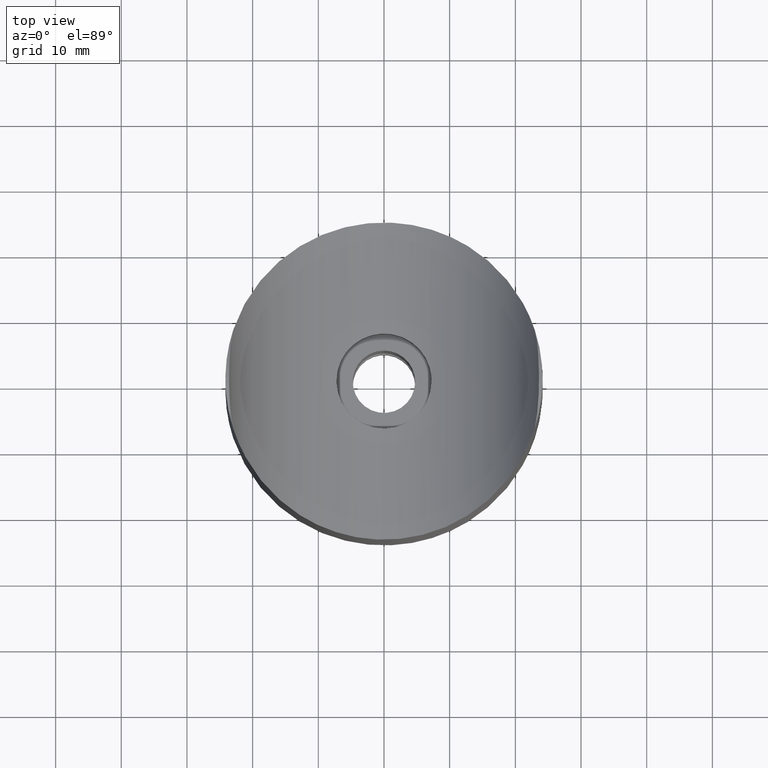
[diagram: clean part render]
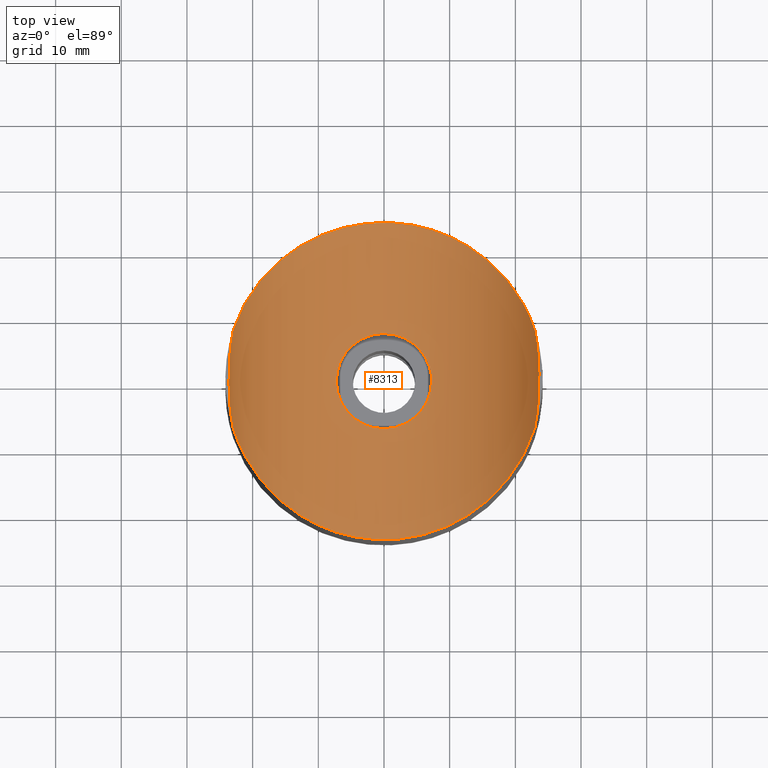
[diagram: same view with one face highlighted and labeled with its STEP entity id]
A machine part, top view. The second image highlights one B-rep face of the part: STEP entity #8313.
In plain terms, the highlighted cylindrical surface (partial cylindrical patch) has radius 24.15 mm, axis along (0, 1, 0).
Its self-contained STEP definition (entity closure, byte-faithful):
#99 = CARTESIAN_POINT ( 'NONE',  ( -5.463935351666969531, 4.788709261913876247, 25.62373870971207523 ) ) ;
#129 = CARTESIAN_POINT ( 'NONE',  ( 22.95588159927646643, 7.499999999999992895, 41.65000000000000568 ) ) ;
#141 = CARTESIAN_POINT ( 'NONE',  ( 23.49949931771601186, -3.305007554286282456, 43.58204950070745554 ) ) ;
#148 = CARTESIAN_POINT ( 'NONE',  ( -7.190937394407018068, -0.9539719690186864165, 26.09542276474033784 ) ) ;
#190 = CARTESIAN_POINT ( 'NONE',  ( -1.194082458193146845, 7.154916845269342573, 25.02841527240805419 ) ) ;
#220 = CARTESIAN_POINT ( 'NONE',  ( -23.17853233189731554, 6.387139284601362377, 42.36256465816466488 ) ) ;
#242 = CARTESIAN_POINT ( 'NONE',  ( -6.875825524705427405, -2.347176018906347306, 25.99873104965085702 ) ) ;
#273 = CARTESIAN_POINT ( 'NONE',  ( -23.34095896364553724, 5.203425376635841815, 42.94409360062369529 ) ) ;
#288 = CARTESIAN_POINT ( 'NONE',  ( -4.228520255933791994, -5.893855298342542071, 25.37224818271729632 ) ) ;
#334 = CARTESIAN_POINT ( 'NONE',  ( 5.750336783304167199, 4.421788825645395882, 25.69408307455902474 ) ) ;
#419 = CARTESIAN_POINT ( 'NONE',  ( 7.015820218399774433, 1.888619147174181112, 26.04133722469338963 ) ) ;
#474 = CARTESIAN_POINT ( 'NONE',  ( 7.249999999999999112, -8.131516293641283255E-17, 26.11394130932985291 ) ) ;
#524 = CARTESIAN_POINT ( 'NONE',  ( 23.57219652307004409, 1.662667037415999083, 43.89864619612770724 ) ) ;
#681 = B_SPLINE_CURVE_WITH_KNOTS ( 'NONE', 3,
 ( #7954, #6911, #220, #273, #10173, #10137, #10216, #7873, #1360, #5712, #2381, #3582, #12400, #11173, #10085, #3486, #8950, #7915, #9132, #11130, #11258, #13389 ),
 .UNSPECIFIED., .F., .F.,
 ( 4, 2, 2, 2, 2, 2, 2, 2, 2, 2, 4 ),
 ( 6.071532165918824830E-18, 0.001993106903680222364, 0.003986213807360438656, 0.004982767259200545501, 0.005979320711040651479, 0.007972427614720865169, 0.008968981066560969412, 0.009965534518401077124, 0.01195864142208128908, 0.01395174832576150104, 0.01594485522944170952 ),
 .UNSPECIFIED. ) ;
#917 = B_SPLINE_CURVE_WITH_KNOTS ( 'NONE', 3,
 ( #8172, #9246, #2577, #10048, #1570, #7114, #141, #3697, #8225, #9335, #11372, #3795, #2628, #2343, #524, #7836, #10331, #4809, #12527, #8112, #1619, #3842 ),
 .UNSPECIFIED., .F., .F.,
 ( 4, 2, 2, 2, 2, 2, 2, 2, 2, 2, 4 ),
 ( 1.044441840201302382E-17, 0.001993106903680225400, 0.003986213807360440391, 0.004982767259200544634, 0.005979320711040648009, 0.007972427614720858230, 0.008968981066560962473, 0.009965534518401066716, 0.01195864142208127520, 0.01395174832576148369, 0.01594485522944169217 ),
 .UNSPECIFIED. ) ;
#963 = CARTESIAN_POINT ( 'NONE',  ( 14.16052466468780224, -34.42068965517238865, 14.72931034482759927 ) ) ;
#1189 = CARTESIAN_POINT ( 'NONE',  ( -4.231050712837522099, 5.892028891758616105, 25.37270058855559185 ) ) ;
#1232 = CARTESIAN_POINT ( 'NONE',  ( -6.877376070853803647, 2.342668701104159812, 25.99919327012955250 ) ) ;
#1250 = VERTEX_POINT ( 'NONE', #13001 ) ;
#1285 = CARTESIAN_POINT ( 'NONE',  ( -0.4825929110061835114, 7.237878246713412622, 25.00364694169966029 ) ) ;
#1304 = ORIENTED_EDGE ( 'NONE', *, *, #8057, .F. ) ;
#1335 = CARTESIAN_POINT ( 'NONE',  ( -7.250203973369103494, 0.4717505720782100842, 26.11400550463317671 ) ) ;
#1360 = CARTESIAN_POINT ( 'NONE',  ( -23.54919858853800108, 2.327953500225907302, 43.79645623682837652 ) ) ;
#1372 = CARTESIAN_POINT ( 'NONE',  ( 1.655916322836513688, -7.062402749334219187, 25.05569510540831857 ) ) ;
#1558 = CARTESIAN_POINT ( 'NONE',  ( -14.16052466468779691, 34.42068965517240287, 14.72931034482758150 ) ) ;
#1570 = CARTESIAN_POINT ( 'NONE',  ( 23.40425869456801422, -4.588300385915843549, 43.19129710098017227 ) ) ;
#1619 = CARTESIAN_POINT ( 'NONE',  ( 23.07943559808702361, 6.955780803518929467, 42.02817212904162147 ) ) ;
#1627 = EDGE_CURVE ( 'NONE', #14016, #9019, #917, .T. ) ;
#2040 = AXIS2_PLACEMENT_3D ( 'NONE', #11614, #9482, #2876 ) ;
#2247 = CARTESIAN_POINT ( 'NONE',  ( 7.005132268049746536, -1.883515786305133943, 26.03818712466236107 ) ) ;
#2295 = CARTESIAN_POINT ( 'NONE',  ( 5.450528033875953859, -4.786478692552384118, 25.62260825477086712 ) ) ;
#2343 = CARTESIAN_POINT ( 'NONE',  ( 23.58059663413400386, 1.331354551583066259, 43.93668628495057504 ) ) ;
#2348 = CARTESIAN_POINT ( 'NONE',  ( -1.891178497224034638, 7.015027855281254610, 25.06966207377721290 ) ) ;
#2381 = CARTESIAN_POINT ( 'NONE',  ( -23.59438424472908125, 0.6794122471350207970, 43.99951144466636777 ) ) ;
#2393 = CARTESIAN_POINT ( 'NONE',  ( -4.962435920999240579, 5.290811488851250743, 25.51472985797496662 ) ) ;
#2430 = CARTESIAN_POINT ( 'NONE',  ( 0.9484403245173363972, 7.203466903221687367, 25.01409243754153167 ) ) ;
#2482 = CARTESIAN_POINT ( 'NONE',  ( 5.291107627380770673, 4.962046597767265865, 25.58613754225201831 ) ) ;
#2577 = CARTESIAN_POINT ( 'NONE',  ( 23.17853233189731910, -6.387139284601352607, 42.36256465816467198 ) ) ;
#2628 = CARTESIAN_POINT ( 'NONE',  ( 23.59177974707780123, 0.6632460867595817433, 43.98752909174069003 ) ) ;
#2876 = DIRECTION ( 'NONE',  ( 0.000000000000000000, 0.000000000000000000, 1.000000000000000000 ) ) ;
#3246 = CARTESIAN_POINT ( 'NONE',  ( 7.250000000000000000, 0.000000000000000000, 26.11394130932984936 ) ) ;
#3264 = CARTESIAN_POINT ( 'NONE',  ( 6.511077239207348377, -3.223923639002039820, 25.89350832831135918 ) ) ;
#3358 = CARTESIAN_POINT ( 'NONE',  ( -7.238159395298985110, -0.4782172060890971244, 26.11020484737162306 ) ) ;
#3411 = ORIENTED_EDGE ( 'NONE', *, *, #11090, .F. ) ;
#3412 = CARTESIAN_POINT ( 'NONE',  ( 1.649311365242461358, 7.063923530108977111, 25.05524869917393360 ) ) ;
#3454 = CARTESIAN_POINT ( 'NONE',  ( -0.9548036046264853915, -7.202553625920780078, 25.01436544652691651 ) ) ;
#3486 = CARTESIAN_POINT ( 'NONE',  ( -23.53819279198609138, -2.648538919427390503, 43.74753363082997026 ) ) ;
#3506 = CARTESIAN_POINT ( 'NONE',  ( -1.887006463236357678, -7.016240821506662506, 25.06930831911350310 ) ) ;
#3556 = CARTESIAN_POINT ( 'NONE',  ( -6.284815106235163817, -3.644957662798244957, 25.83054428248398082 ) ) ;
#3582 = CARTESIAN_POINT ( 'NONE',  ( -23.59454307295503384, -0.3254296317553804774, 44.00023910845316522 ) ) ;
#3596 = CARTESIAN_POINT ( 'NONE',  ( 6.874400171282861294, 2.351453121312660155, 25.99830351633713832 ) ) ;
#3697 = CARTESIAN_POINT ( 'NONE',  ( 23.53485153924233941, -2.654742722643808062, 43.73342322386825742 ) ) ;
#3712 = EDGE_LOOP ( 'NONE', ( #11228 ) ) ;
#3746 = CARTESIAN_POINT ( 'NONE',  ( 6.287576360483349447, 3.640402073505403013, 25.83128016843693686 ) ) ;
#3795 = CARTESIAN_POINT ( 'NONE',  ( 23.59454307295503028, 0.3254296317553797002, 44.00023910845316522 ) ) ;
#3842 = CARTESIAN_POINT ( 'NONE',  ( 22.95588159927646643, 7.499999999999992895, 41.65000000000000568 ) ) ;
#3854 = ORIENTED_EDGE ( 'NONE', *, *, #1627, .T. ) ;
#4236 =( BOUNDED_CURVE ( )  B_SPLINE_CURVE ( 3, ( #7096, #1558, #8150, #9320 ),
 .UNSPECIFIED., .F., .T. ) 
 B_SPLINE_CURVE_WITH_KNOTS ( ( 4, 4 ),
 ( 5.028170040954742070, 7.538200573404430394 ),
 .UNSPECIFIED. ) 
 CURVE ( )  GEOMETRIC_REPRESENTATION_ITEM ( )  RATIONAL_B_SPLINE_CURVE ( ( 1.000000000000000000, 0.5403726708074531038, 0.5403726708074531038, 1.000000000000000000 ) ) 
 REPRESENTATION_ITEM ( '' )  );
#4246 = CARTESIAN_POINT ( 'NONE',  ( 22.95588159927646998, -7.500000000000002665, 41.65000000000001990 ) ) ;
#4435 = CARTESIAN_POINT ( 'NONE',  ( 7.063023397359131650, -1.653011571266929991, 26.05587597579680192 ) ) ;
#4484 = CARTESIAN_POINT ( 'NONE',  ( -7.203772017884857881, 0.9479127137863996300, 26.09923372664612984 ) ) ;
#4523 = CARTESIAN_POINT ( 'NONE',  ( 2.340393982012674012, 6.866020510362853990, 25.11257522175137069 ) ) ;
#4571 = CARTESIAN_POINT ( 'NONE',  ( -3.217946500129018172, -6.501028593805388667, 25.21442509437580171 ) ) ;
#4622 = CARTESIAN_POINT ( 'NONE',  ( 5.292161427922053463, -4.960920004862213517, 25.58637474294757652 ) ) ;
#4661 = CARTESIAN_POINT ( 'NONE',  ( -7.155131508516587857, -1.193129468298085083, 26.08424595322791717 ) ) ;
#4809 = CARTESIAN_POINT ( 'NONE',  ( 23.40625775316083690, 4.566365360697873577, 43.19922918509134036 ) ) ;
#4853 = CARTESIAN_POINT ( 'NONE',  ( 5.892937365032683061, 4.229858171171288816, 25.72961908978076195 ) ) ;
#5587 = CARTESIAN_POINT ( 'NONE',  ( -4.417710530253409651, -5.753453706698214987, 25.40676979395135859 ) ) ;
#5636 = CARTESIAN_POINT ( 'NONE',  ( 3.635904837538681100, 6.290488802313170424, 25.27188523307748724 ) ) ;
#5683 = CARTESIAN_POINT ( 'NONE',  ( -7.249897003482064228, -0.2405618492822049759, 26.11390889385942415 ) ) ;
#5712 = CARTESIAN_POINT ( 'NONE',  ( -23.58333329076966578, 1.342710219142406292, 43.94811276142466738 ) ) ;
#5726 = CARTESIAN_POINT ( 'NONE',  ( 4.793714833284048460, -5.459267129612257463, 25.47810887501607979 ) ) ;
#5776 = CARTESIAN_POINT ( 'NONE',  ( -2.340435523965493925, -6.878418529272459558, 25.10958126736862539 ) ) ;
#6544 = CARTESIAN_POINT ( 'NONE',  ( 7.249999999999999112, -0.4819777699687033956, 26.11394130932985647 ) ) ;
#6591 = CARTESIAN_POINT ( 'NONE',  ( -22.95588159927646643, -7.500000000000001776, 41.64999999999999858 ) ) ;
#6694 = CARTESIAN_POINT ( 'NONE',  ( -7.014186066537649644, -1.895139349267402906, 26.04083817129257739 ) ) ;
#6739 = CARTESIAN_POINT ( 'NONE',  ( 3.221480690049991935, -6.512085145936921116, 25.21181015599499631 ) ) ;
#6754 = VERTEX_POINT ( 'NONE', #3246 ) ;
#6788 = CARTESIAN_POINT ( 'NONE',  ( -2.344622196554731808, 6.877094153063543658, 25.10996664923462873 ) ) ;
#6838 = CARTESIAN_POINT ( 'NONE',  ( 0.4807107271748674027, -7.249688256254144925, 25.00009358764894074 ) ) ;
#6884 = CARTESIAN_POINT ( 'NONE',  ( -3.837279822448167899, -6.155745072440457655, 25.30598296000932734 ) ) ;
#6911 = CARTESIAN_POINT ( 'NONE',  ( -23.07944902034609314, 6.955721682396822203, 42.02821321168031687 ) ) ;
#7075 = B_SPLINE_CURVE_WITH_KNOTS ( 'NONE', 3,
 ( #10905, #6544, #13065, #4435, #2247, #7641, #9862, #3264, #7590, #10816, #11094, #2295, #4622, #5726, #11184, #10054, #6739, #9962, #13302, #12286, #1372, #13403, #6838, #11146, #3454, #3506, #5776, #13357, #4571, #13444, #6884, #288, #5587, #12233, #7972, #9104, #13251, #3556, #8919, #242, #6694, #4661, #148, #3358, #5683, #1335, #4484, #10149, #1232, #8967, #11041, #12151, #99, #2393, #7926, #7782, #1189, #7839, #9054, #6788, #2348, #190, #7889, #1285, #9007, #10003, #2430, #3412, #11227, #4523, #12334, #12196, #5636, #10104, #11327, #2482, #10189, #334, #4853, #3746, #8063, #3596, #419, #12416, #12570, #474 ),
 .UNSPECIFIED., .T., .F.,
 ( 4, 2, 2, 2, 2, 2, 2, 2, 2, 2, 2, 2, 2, 2, 2, 2, 2, 2, 2, 2, 2, 2, 2, 2, 2, 2, 2, 2, 2, 2, 2, 2, 2, 2, 2, 2, 2, 2, 2, 2, 2, 2, 4 ),
 ( 0.000000000000000000, 0.001424720433073834802, 0.002137080649610752312, 0.002849440866147669605, 0.004274161299221506359, 0.004986521515758423652, 0.005698881732295340945, 0.007123602165369173796, 0.008548322598443007514, 0.009260682814979924807, 0.009973043031516840365, 0.01139776346459067148, 0.01282248389766450433, 0.01424720433073833198, 0.01495956454727524927, 0.01567192476381216310, 0.01638428498034907865, 0.01709664519688599074, 0.01852136562995982533, 0.01994608606303365991, 0.02137080649610748756, 0.02208316671264440659, 0.02279552692918132561, 0.02422024736225515673, 0.02564496779532899479, 0.02706968822840282590, 0.02849440866147666049, 0.02920676887801357605, 0.02991912909455049854, 0.03134384952762433313, 0.03276856996069816425, 0.03348093017723507980, 0.03419329039377200230, 0.03561801082684584036, 0.03633037104338275591, 0.03704273125991967147, 0.03846745169299350259, 0.03989217212606734064, 0.04060453234260425620, 0.04131689255914117870, 0.04274161299221500288, 0.04416633342528883399, 0.04559105385836266511 ),
 .UNSPECIFIED. ) ;
#7096 = CARTESIAN_POINT ( 'NONE',  ( -22.95588159927646998, 7.499999999999992895, 41.65000000000001990 ) ) ;
#7114 = CARTESIAN_POINT ( 'NONE',  ( 23.47838276607514274, -3.629853885291807636, 43.49325323088189066 ) ) ;
#7590 = CARTESIAN_POINT ( 'NONE',  ( 6.288279808588535857, -3.639174042621827976, 25.83147146888218515 ) ) ;
#7641 = CARTESIAN_POINT ( 'NONE',  ( 6.866026250664982733, -2.340340431499605689, 25.99648069941257233 ) ) ;
#7782 = CARTESIAN_POINT ( 'NONE',  ( -4.420085787299013802, 5.751629280268372391, 25.40721230515025297 ) ) ;
#7836 = CARTESIAN_POINT ( 'NONE',  ( 23.53819279198609138, 2.648538919427388283, 43.74753363082996316 ) ) ;
#7837 = CARTESIAN_POINT ( 'NONE',  ( 22.95588159927646998, -7.500000000000002665, 41.65000000000001990 ) ) ;
#7839 = CARTESIAN_POINT ( 'NONE',  ( -3.645004378345033658, 6.284713316097249702, 25.27336973469336101 ) ) ;
#7873 = CARTESIAN_POINT ( 'NONE',  ( -23.53485153924235007, 2.654742722643809394, 43.73342322386827874 ) ) ;
#7889 = CARTESIAN_POINT ( 'NONE',  ( -0.9588759266909252510, 7.190294457754375479, 25.01786750220659883 ) ) ;
#7915 = CARTESIAN_POINT ( 'NONE',  ( -23.40625775316083335, -4.566365360697882458, 43.19922918509135457 ) ) ;
#7916 = CARTESIAN_POINT ( 'NONE',  ( -22.95588159927646998, 7.499999999999992895, 41.65000000000001990 ) ) ;
#7926 = CARTESIAN_POINT ( 'NONE',  ( -4.785424623598824034, 5.451431822611122691, 25.47814250926545654 ) ) ;
#7954 = CARTESIAN_POINT ( 'NONE',  ( -22.95588159927646998, 7.499999999999992895, 41.65000000000001990 ) ) ;
#7972 = CARTESIAN_POINT ( 'NONE',  ( -4.960207737149436191, -5.292901783625877599, 25.51426149708331437 ) ) ;
#8057 = EDGE_CURVE ( 'NONE', #14016, #1250, #14258, .T. ) ;
#8063 = CARTESIAN_POINT ( 'NONE',  ( 6.510153906180981664, 3.225617090496233796, 25.89325207806522400 ) ) ;
#8112 = CARTESIAN_POINT ( 'NONE',  ( 23.17893035629539966, 6.385308370221859597, 42.36384498530109255 ) ) ;
#8150 = CARTESIAN_POINT ( 'NONE',  ( 14.16052466468779159, 34.42068965517240997, 14.72931034482758150 ) ) ;
#8172 = CARTESIAN_POINT ( 'NONE',  ( 22.95588159927646998, -7.500000000000002665, 41.65000000000001990 ) ) ;
#8225 = CARTESIAN_POINT ( 'NONE',  ( 23.54919858853800108, -2.327953500225902417, 43.79645623682836231 ) ) ;
#8236 = EDGE_LOOP ( 'NONE', ( #1304, #3854, #3411, #8895 ) ) ;
#8313 = ADVANCED_FACE ( 'NONE', ( #8349, #11080 ), #13312, .F. ) ;
#8349 = FACE_BOUND ( 'NONE', #3712, .T. ) ;
#8631 = EDGE_CURVE ( 'NONE', #10240, #1250, #681, .T. ) ;
#8895 = ORIENTED_EDGE ( 'NONE', *, *, #8631, .T. ) ;
#8919 = CARTESIAN_POINT ( 'NONE',  ( -6.512588624488565792, -3.220621262753794678, 25.89393799316457390 ) ) ;
#8950 = CARTESIAN_POINT ( 'NONE',  ( -23.50396153903346885, -3.295082903082587666, 43.59767010430707046 ) ) ;
#8967 = CARTESIAN_POINT ( 'NONE',  ( -6.514537617548413984, 3.216706062516772935, 25.89448552507784029 ) ) ;
#9007 = CARTESIAN_POINT ( 'NONE',  ( -0.2409192066514666553, 7.249934597112835277, 25.00001963440645625 ) ) ;
#9019 = VERTEX_POINT ( 'NONE', #129 ) ;
#9054 = CARTESIAN_POINT ( 'NONE',  ( -3.228525279233147582, 6.509093773792973714, 25.21264255871501803 ) ) ;
#9104 = CARTESIAN_POINT ( 'NONE',  ( -5.461977603441228624, -4.790947819237317162, 25.62328152599157960 ) ) ;
#9132 = CARTESIAN_POINT ( 'NONE',  ( -23.34223474764486639, -5.193047090726318871, 42.94880742668348006 ) ) ;
#9246 = CARTESIAN_POINT ( 'NONE',  ( 23.07944902034610024, -6.955721682396821315, 42.02821321168030266 ) ) ;
#9320 = CARTESIAN_POINT ( 'NONE',  ( 22.95588159927646643, 7.499999999999992895, 41.65000000000000568 ) ) ;
#9335 = CARTESIAN_POINT ( 'NONE',  ( 23.58333329076965867, -1.342710219142403405, 43.94811276142466738 ) ) ;
#9482 = DIRECTION ( 'NONE',  ( -0.000000000000000000, 1.000000000000000000, -0.000000000000000000 ) ) ;
#9862 = CARTESIAN_POINT ( 'NONE',  ( 6.784652654092800717, -2.566576703426474371, 25.97242471081425919 ) ) ;
#9962 = CARTESIAN_POINT ( 'NONE',  ( 2.567971062528666248, -6.784076747656213158, 25.13591835332833924 ) ) ;
#10003 = CARTESIAN_POINT ( 'NONE',  ( 0.4759095739806231129, 7.250129997702256190, 24.99996097377601245 ) ) ;
#10048 = CARTESIAN_POINT ( 'NONE',  ( 23.34095896364553724, -5.203425376635833821, 42.94409360062370951 ) ) ;
#10054 = CARTESIAN_POINT ( 'NONE',  ( 3.638877831533070761, -6.288723548186535339, 25.27234837304877857 ) ) ;
#10085 = CARTESIAN_POINT ( 'NONE',  ( -23.57219652307004054, -1.662667037416000415, 43.89864619612770014 ) ) ;
#10104 = CARTESIAN_POINT ( 'NONE',  ( 4.428777119038284305, 5.759859945306616602, 25.40615654448836125 ) ) ;
#10137 = CARTESIAN_POINT ( 'NONE',  ( -23.47838276607513563, 3.629853885291810744, 43.49325323088186934 ) ) ;
#10149 = CARTESIAN_POINT ( 'NONE',  ( -7.015941670273364572, 1.889294121607460575, 26.04137131819000928 ) ) ;
#10173 = CARTESIAN_POINT ( 'NONE',  ( -23.40425869456801067, 4.588300385915847990, 43.19129710098017938 ) ) ;
#10189 = CARTESIAN_POINT ( 'NONE',  ( 5.449496473532430052, 4.787648454615378135, 25.62236943252536392 ) ) ;
#10216 = CARTESIAN_POINT ( 'NONE',  ( -23.49949931771601186, 3.305007554286285565, 43.58204950070744843 ) ) ;
#10240 = VERTEX_POINT ( 'NONE', #7916 ) ;
#10331 = CARTESIAN_POINT ( 'NONE',  ( 23.50396153903346530, 3.295082903082582781, 43.59767010430709178 ) ) ;
#10816 = CARTESIAN_POINT ( 'NONE',  ( 5.893845718678312195, -4.228589636074421065, 25.72984806632689114 ) ) ;
#10905 = CARTESIAN_POINT ( 'NONE',  ( 7.249999999999999112, -8.131516293641283255E-17, 26.11394130932985291 ) ) ;
#10952 = CARTESIAN_POINT ( 'NONE',  ( -14.16052466468776494, -34.42068965517241708, 14.72931034482758683 ) ) ;
#11041 = CARTESIAN_POINT ( 'NONE',  ( -6.287189625676635529, 3.640949459774330599, 25.83118226600549860 ) ) ;
#11080 = FACE_OUTER_BOUND ( 'NONE', #8236, .T. ) ;
#11090 = EDGE_CURVE ( 'NONE', #10240, #9019, #4236, .T. ) ;
#11094 = CARTESIAN_POINT ( 'NONE',  ( 5.751404433098313618, -4.420405091081890170, 25.69434470690531214 ) ) ;
#11130 = CARTESIAN_POINT ( 'NONE',  ( -23.17893035629539256, -6.385308370221870256, 42.36384498530106413 ) ) ;
#11146 = CARTESIAN_POINT ( 'NONE',  ( -0.4712609527894547901, -7.250308664496028399, 24.99990733676346011 ) ) ;
#11173 = CARTESIAN_POINT ( 'NONE',  ( -23.58059663413400386, -1.331354551583069812, 43.93668628495056794 ) ) ;
#11184 = CARTESIAN_POINT ( 'NONE',  ( 4.430535015015572675, -5.758457711840883064, 25.40649481286326861 ) ) ;
#11227 = CARTESIAN_POINT ( 'NONE',  ( 1.882875519516437057, 7.005316653640306868, 25.07241677952274017 ) ) ;
#11228 = ORIENTED_EDGE ( 'NONE', *, *, #11833, .T. ) ;
#11258 = CARTESIAN_POINT ( 'NONE',  ( -23.07943559808701650, -6.955780803518925026, 42.02817212904161437 ) ) ;
#11327 = CARTESIAN_POINT ( 'NONE',  ( 4.792431585243522640, 5.460403369030797371, 25.47784684677947098 ) ) ;
#11372 = CARTESIAN_POINT ( 'NONE',  ( 23.59438424472908480, -0.6794122471350197978, 43.99951144466636777 ) ) ;
#11614 = CARTESIAN_POINT ( 'NONE',  ( 0.000000000000000000, -24.14999999999999858, 49.14999999999999858 ) ) ;
#11833 = EDGE_CURVE ( 'NONE', #6754, #6754, #7075, .T. ) ;
#12151 = CARTESIAN_POINT ( 'NONE',  ( -5.762065438270873585, 4.425366452954063945, 25.69590407230420936 ) ) ;
#12196 = CARTESIAN_POINT ( 'NONE',  ( 3.219168441476828235, 6.513313868482390134, 25.21147741431789413 ) ) ;
#12233 = CARTESIAN_POINT ( 'NONE',  ( -4.783167365172773522, -5.453412311661153034, 25.47768585661134821 ) ) ;
#12286 = CARTESIAN_POINT ( 'NONE',  ( 1.889932500870386445, -7.003379799992323740, 25.07297993355183152 ) ) ;
#12334 = CARTESIAN_POINT ( 'NONE',  ( 2.563886665923544861, 6.785641894124003315, 25.13547653139350402 ) ) ;
#12400 = CARTESIAN_POINT ( 'NONE',  ( -23.59177974707780834, -0.6632460867595844078, 43.98752909174069714 ) ) ;
#12416 = CARTESIAN_POINT ( 'NONE',  ( 7.202398825524179315, 0.9560683961244254014, 26.09880741137594740 ) ) ;
#12527 = CARTESIAN_POINT ( 'NONE',  ( 23.34223474764486994, 5.193047090726310877, 42.94880742668349427 ) ) ;
#12570 = CARTESIAN_POINT ( 'NONE',  ( 7.250000000000000000, 0.4819777699687015082, 26.11394130932984936 ) ) ;
#13001 = CARTESIAN_POINT ( 'NONE',  ( -22.95588159927646643, -7.500000000000001776, 41.64999999999999858 ) ) ;
#13065 = CARTESIAN_POINT ( 'NONE',  ( 7.202421268336044236, -0.9553088186341857080, 26.09881600218528774 ) ) ;
#13251 = CARTESIAN_POINT ( 'NONE',  ( -5.760028374301386478, -4.427944264599122270, 25.69540580167726063 ) ) ;
#13302 = CARTESIAN_POINT ( 'NONE',  ( 2.345293780030218045, -6.864311368676269787, 25.11306306487148632 ) ) ;
#13312 = CYLINDRICAL_SURFACE ( 'NONE', #2040, 24.15000000000000568 ) ;
#13357 = CARTESIAN_POINT ( 'NONE',  ( -3.001560036107228768, -6.603793025683313722, 25.18622827745667792 ) ) ;
#13389 = CARTESIAN_POINT ( 'NONE',  ( -22.95588159927646643, -7.500000000000001776, 41.64999999999999858 ) ) ;
#13403 = CARTESIAN_POINT ( 'NONE',  ( 0.9530173313449556982, -7.202959378916132138, 25.01424629614230710 ) ) ;
#13444 = CARTESIAN_POINT ( 'NONE',  ( -3.635229885871465338, -6.277233158966994964, 25.27423761599838770 ) ) ;
#14016 = VERTEX_POINT ( 'NONE', #7837 ) ;
#14258 =( BOUNDED_CURVE ( )  B_SPLINE_CURVE ( 3, ( #4246, #963, #10952, #6591 ),
 .UNSPECIFIED., .F., .F. ) 
 B_SPLINE_CURVE_WITH_KNOTS ( ( 4, 4 ),
 ( 5.028170040954742070, 7.538200573404429505 ),
 .UNSPECIFIED. ) 
 CURVE ( )  GEOMETRIC_REPRESENTATION_ITEM ( )  RATIONAL_B_SPLINE_CURVE ( ( 1.000000000000000000, 0.5403726708074534368, 0.5403726708074534368, 1.000000000000000000 ) ) 
 REPRESENTATION_ITEM ( '' )  );